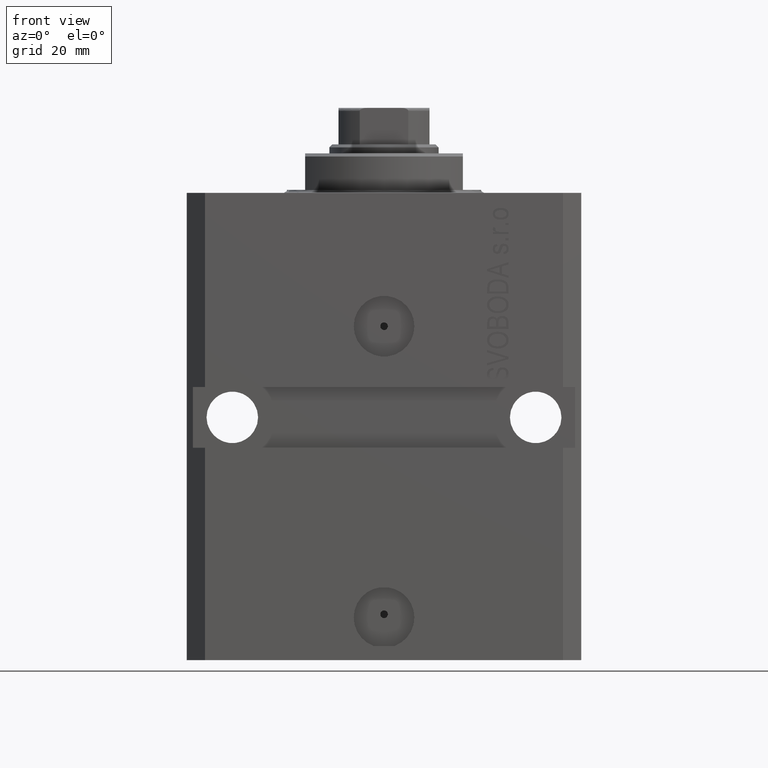
[diagram: clean part render]
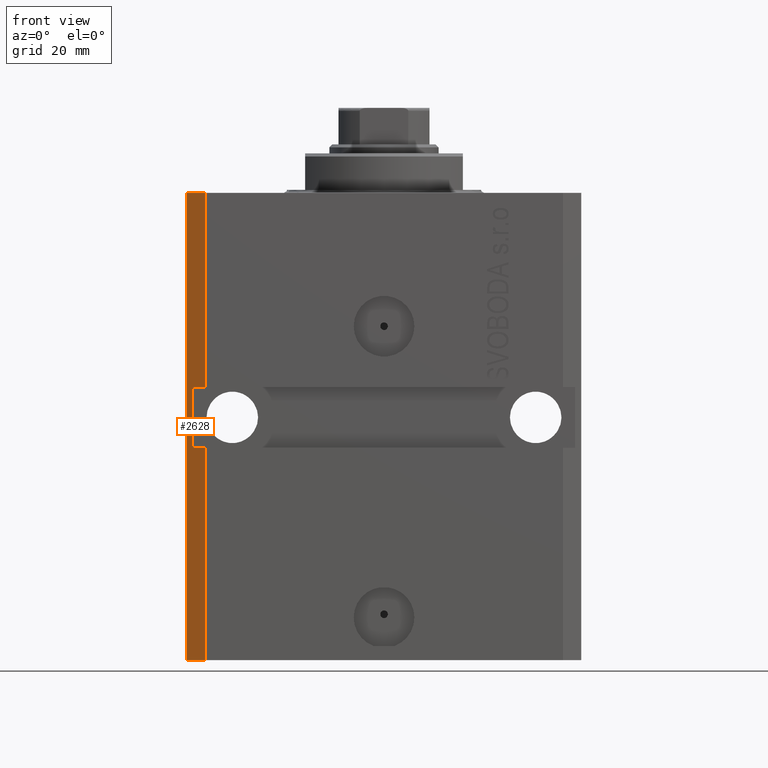
[diagram: same view with one face highlighted and labeled with its STEP entity id]
A machine part, front view. The second image highlights one B-rep face of the part: STEP entity #2628.
In plain terms, the highlighted planar face has unit normal (-0.7071, -0.7071, 0).
Its self-contained STEP definition (entity closure, byte-faithful):
#724 = EDGE_CURVE ( 'NONE', #34738, #29341, #41604, .T. ) ;
#910 = LINE ( 'NONE', #23456, #4188 ) ;
#1123 = LINE ( 'NONE', #14824, #40209 ) ;
#1125 = LINE ( 'NONE', #22007, #14865 ) ;
#1249 = VERTEX_POINT ( 'NONE', #26012 ) ;
#1960 = AXIS2_PLACEMENT_3D ( 'NONE', #29455, #33722, #40241 ) ;
#1961 = EDGE_CURVE ( 'NONE', #5686, #8451, #19002, .T. ) ;
#2228 = DIRECTION ( 'NONE',  ( 0.000000000000000000, 0.000000000000000000, 1.000000000000000000 ) ) ;
#2628 = ADVANCED_FACE ( 'NONE', ( #13258 ), #12810, .T. ) ;
#3446 = CARTESIAN_POINT ( 'NONE',  ( -29.49999999999650058, -22.49999999999949907, -32.00000000000000000 ) ) ;
#3626 = EDGE_CURVE ( 'NONE', #44460, #8451, #24054, .T. ) ;
#4188 = VECTOR ( 'NONE', #41588, 1000.000000000000114 ) ;
#5336 = EDGE_CURVE ( 'NONE', #25782, #29746, #910, .T. ) ;
#5686 = VERTEX_POINT ( 'NONE', #17935 ) ;
#7596 = EDGE_CURVE ( 'NONE', #29746, #29341, #19655, .T. ) ;
#7856 = LINE ( 'NONE', #15712, #43292 ) ;
#8451 = VERTEX_POINT ( 'NONE', #15349 ) ;
#8890 = DIRECTION ( 'NONE',  ( 0.7071067811865474617, -0.7071067811865474617, 0.000000000000000000 ) ) ;
#10111 = CARTESIAN_POINT ( 'NONE',  ( -29.49999999999650413, -22.49999999999949907, -41.99999999999999289 ) ) ;
#10343 = CARTESIAN_POINT ( 'NONE',  ( -29.49999999999650413, -22.49999999999949907, -77.00000000000000000 ) ) ;
#12810 = PLANE ( 'NONE',  #1960 ) ;
#13258 = FACE_OUTER_BOUND ( 'NONE', #25881, .T. ) ;
#13715 = ORIENTED_EDGE ( 'NONE', *, *, #7596, .T. ) ;
#14578 = CARTESIAN_POINT ( 'NONE',  ( -31.49999999999650413, -20.49999999999949907, -41.99999999999999289 ) ) ;
#14824 = CARTESIAN_POINT ( 'NONE',  ( -32.49999999999650413, -19.49999999999949907, -77.00000000000000000 ) ) ;
#14865 = VECTOR ( 'NONE', #28314, 1000.000000000000114 ) ;
#15129 = EDGE_CURVE ( 'NONE', #25782, #5686, #1123, .T. ) ;
#15349 = CARTESIAN_POINT ( 'NONE',  ( -29.49999999999650413, -22.49999999999949907, 0.000000000000000000 ) ) ;
#15712 = CARTESIAN_POINT ( 'NONE',  ( -31.49999999999650413, -20.49999999999950262, -77.00000000000000000 ) ) ;
#17935 = CARTESIAN_POINT ( 'NONE',  ( -32.49999999999650413, -19.49999999999949907, 0.000000000000000000 ) ) ;
#18121 = ORIENTED_EDGE ( 'NONE', *, *, #23073, .T. ) ;
#18484 = VECTOR ( 'NONE', #37766, 1000.000000000000000 ) ;
#19002 = LINE ( 'NONE', #35627, #27788 ) ;
#19655 = LINE ( 'NONE', #33143, #27921 ) ;
#20482 = DIRECTION ( 'NONE',  ( 0.7071067811865474617, -0.7071067811865474617, 7.548521435980497974E-17 ) ) ;
#22007 = CARTESIAN_POINT ( 'NONE',  ( -32.49999999999650413, -19.49999999999950262, -32.00000000000000000 ) ) ;
#23073 = EDGE_CURVE ( 'NONE', #34738, #1249, #7856, .T. ) ;
#23456 = CARTESIAN_POINT ( 'NONE',  ( -32.49999999999650413, -19.49999999999949907, -77.00000000000000000 ) ) ;
#24054 = LINE ( 'NONE', #10343, #18484 ) ;
#24671 = ORIENTED_EDGE ( 'NONE', *, *, #724, .F. ) ;
#24763 = ORIENTED_EDGE ( 'NONE', *, *, #5336, .T. ) ;
#25003 = ORIENTED_EDGE ( 'NONE', *, *, #3626, .T. ) ;
#25782 = VERTEX_POINT ( 'NONE', #36208 ) ;
#25881 = EDGE_LOOP ( 'NONE', ( #24671, #18121, #32387, #25003, #32171, #30816, #24763, #13715 ) ) ;
#26012 = CARTESIAN_POINT ( 'NONE',  ( -31.49999999999650413, -20.49999999999950262, -32.00000000000000000 ) ) ;
#27788 = VECTOR ( 'NONE', #8890, 1000.000000000000114 ) ;
#27921 = VECTOR ( 'NONE', #33368, 1000.000000000000000 ) ;
#28314 = DIRECTION ( 'NONE',  ( -0.7071067811865474617, 0.7071067811865474617, 7.548521435980497974E-17 ) ) ;
#29341 = VERTEX_POINT ( 'NONE', #10111 ) ;
#29455 = CARTESIAN_POINT ( 'NONE',  ( -32.49999999999650413, -19.49999999999949907, -77.00000000000000000 ) ) ;
#29746 = VERTEX_POINT ( 'NONE', #36253 ) ;
#30816 = ORIENTED_EDGE ( 'NONE', *, *, #15129, .F. ) ;
#32046 = VECTOR ( 'NONE', #20482, 1000.000000000000114 ) ;
#32124 = DIRECTION ( 'NONE',  ( 0.000000000000000000, 0.000000000000000000, 1.000000000000000000 ) ) ;
#32171 = ORIENTED_EDGE ( 'NONE', *, *, #1961, .F. ) ;
#32387 = ORIENTED_EDGE ( 'NONE', *, *, #37390, .F. ) ;
#33143 = CARTESIAN_POINT ( 'NONE',  ( -29.49999999999650413, -22.49999999999949907, -77.00000000000000000 ) ) ;
#33368 = DIRECTION ( 'NONE',  ( 0.000000000000000000, 0.000000000000000000, 1.000000000000000000 ) ) ;
#33722 = DIRECTION ( 'NONE',  ( -0.7071067811865475727, -0.7071067811865475727, 0.000000000000000000 ) ) ;
#34738 = VERTEX_POINT ( 'NONE', #14578 ) ;
#35627 = CARTESIAN_POINT ( 'NONE',  ( -32.49999999999650413, -19.49999999999949907, 0.000000000000000000 ) ) ;
#36208 = CARTESIAN_POINT ( 'NONE',  ( -32.49999999999650413, -19.49999999999949907, -77.00000000000000000 ) ) ;
#36253 = CARTESIAN_POINT ( 'NONE',  ( -29.49999999999650413, -22.49999999999949907, -77.00000000000000000 ) ) ;
#37390 = EDGE_CURVE ( 'NONE', #44460, #1249, #1125, .T. ) ;
#37574 = CARTESIAN_POINT ( 'NONE',  ( -32.49999999999650413, -19.49999999999949551, -41.99999999999999289 ) ) ;
#37766 = DIRECTION ( 'NONE',  ( 0.000000000000000000, 0.000000000000000000, 1.000000000000000000 ) ) ;
#40209 = VECTOR ( 'NONE', #32124, 1000.000000000000000 ) ;
#40241 = DIRECTION ( 'NONE',  ( 0.7071067811865474617, -0.7071067811865474617, 0.000000000000000000 ) ) ;
#41588 = DIRECTION ( 'NONE',  ( 0.7071067811865474617, -0.7071067811865474617, 0.000000000000000000 ) ) ;
#41604 = LINE ( 'NONE', #37574, #32046 ) ;
#43292 = VECTOR ( 'NONE', #2228, 1000.000000000000000 ) ;
#44460 = VERTEX_POINT ( 'NONE', #3446 ) ;